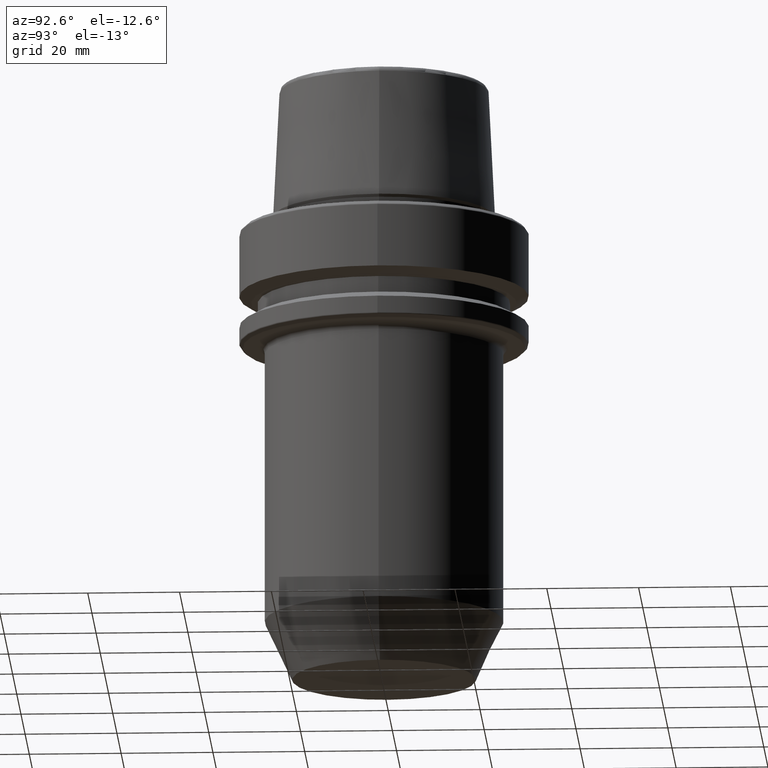
[diagram: clean part render]
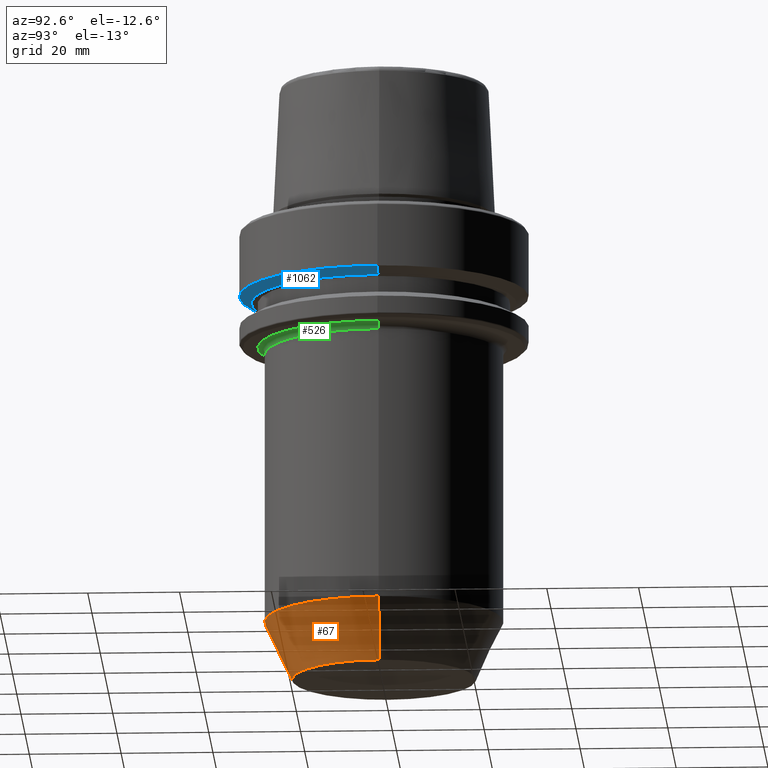
[diagram: same view with three faces highlighted in distinct colors, each labeled with its STEP entity id]
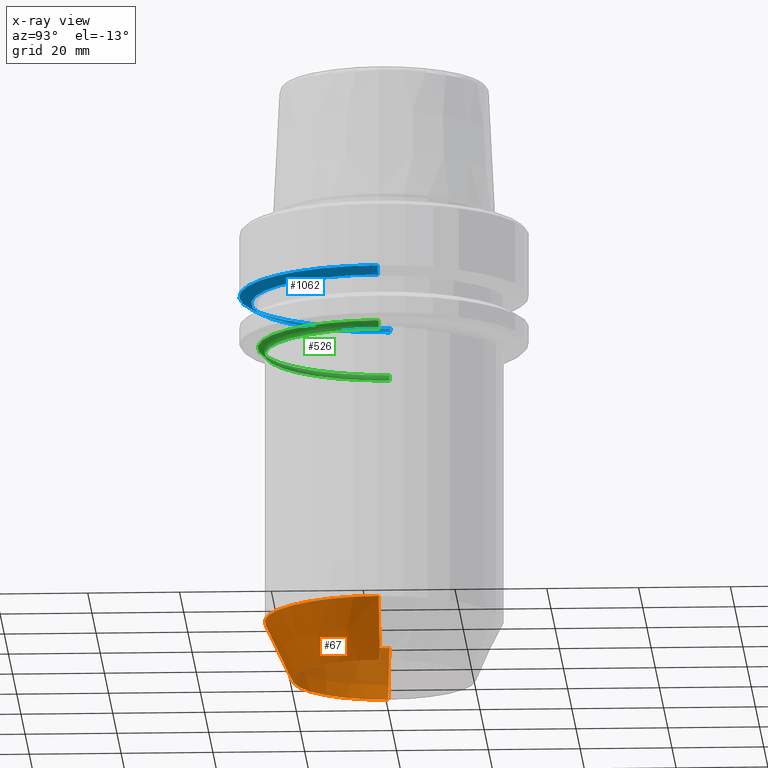
[diagram: x-ray of the same camera — body ghosted, the three highlighted faces saturated]
A machine part, auxiliary view with three faces highlighted in distinct colors.
The next image is the same camera in x-ray (body ghosted, the three faces saturated) — at least one of them is partly hidden behind the body in this view.
Their STEP definitions:

[orange] entity #67 — the highlighted conical surface has half-angle 25 deg.
#2 = LINE ( 'NONE', #1174, #972 ) ;
#67 = ADVANCED_FACE ( 'NONE', ( #799 ), #250, .T. ) ;
#71 = ORIENTED_EDGE ( 'NONE', *, *, #198, .T. ) ;
#105 = LINE ( 'NONE', #484, #663 ) ;
#170 = DIRECTION ( 'NONE',  ( -0.4226182617406969400, 5.175581015019628600E-017, 0.9063077870366511600 ) ) ;
#198 = EDGE_CURVE ( 'NONE', #1071, #1026, #2, .T. ) ;
#199 = DIRECTION ( 'NONE',  ( 1.000000000000000000, 0.0000000000000000000, 0.0000000000000000000 ) ) ;
#227 = CARTESIAN_POINT ( 'NONE',  ( -20.00000000000000000, 2.816687638038912400E-015, -100.0000000000000000 ) ) ;
#248 = DIRECTION ( 'NONE',  ( 1.000000000000000000, 0.0000000000000000000, 0.0000000000000000000 ) ) ;
#250 = CONICAL_SURFACE ( 'NONE', #335, 20.00000000000000000, 0.4363323129985795500 ) ;
#253 = AXIS2_PLACEMENT_3D ( 'NONE', #1231, #476, #1065 ) ;
#265 = EDGE_CURVE ( 'NONE', #1111, #1071, #883, .T. ) ;
#284 = CARTESIAN_POINT ( 'NONE',  ( -26.00000000000000000, 3.184081677783118200E-015, -87.13295847694256200 ) ) ;
#298 = EDGE_LOOP ( 'NONE', ( #651, #447, #71, #846 ) ) ;
#335 = AXIS2_PLACEMENT_3D ( 'NONE', #919, #1186, #248 ) ;
#347 = VERTEX_POINT ( 'NONE', #284 ) ;
#382 = DIRECTION ( 'NONE',  ( -0.0000000000000000000, -0.0000000000000000000, 1.000000000000000000 ) ) ;
#447 = ORIENTED_EDGE ( 'NONE', *, *, #265, .T. ) ;
#476 = DIRECTION ( 'NONE',  ( -0.0000000000000000000, -0.0000000000000000000, 1.000000000000000000 ) ) ;
#484 = CARTESIAN_POINT ( 'NONE',  ( -20.00000000000000000, 2.449293598294706500E-015, -100.0000000000000000 ) ) ;
#539 = CIRCLE ( 'NONE', #655, 26.00000000000000000 ) ;
#573 = DIRECTION ( 'NONE',  ( 0.4226182617406969400, 0.0000000000000000000, 0.9063077870366511600 ) ) ;
#651 = ORIENTED_EDGE ( 'NONE', *, *, #761, .F. ) ;
#655 = AXIS2_PLACEMENT_3D ( 'NONE', #1227, #382, #199 ) ;
#663 = VECTOR ( 'NONE', #170, 1000.000000000000000 ) ;
#711 = CARTESIAN_POINT ( 'NONE',  ( 20.00000000000000000, 0.0000000000000000000, -100.0000000000000000 ) ) ;
#761 = EDGE_CURVE ( 'NONE', #1111, #347, #105, .T. ) ;
#799 = FACE_OUTER_BOUND ( 'NONE', #298, .T. ) ;
#846 = ORIENTED_EDGE ( 'NONE', *, *, #870, .F. ) ;
#870 = EDGE_CURVE ( 'NONE', #347, #1026, #539, .T. ) ;
#883 = CIRCLE ( 'NONE', #253, 20.00000000000000000 ) ;
#919 = CARTESIAN_POINT ( 'NONE',  ( 0.0000000000000000000, 0.0000000000000000000, -100.0000000000000000 ) ) ;
#972 = VECTOR ( 'NONE', #573, 1000.000000000000000 ) ;
#1026 = VERTEX_POINT ( 'NONE', #1100 ) ;
#1065 = DIRECTION ( 'NONE',  ( 1.000000000000000000, 0.0000000000000000000, 0.0000000000000000000 ) ) ;
#1071 = VERTEX_POINT ( 'NONE', #711 ) ;
#1100 = CARTESIAN_POINT ( 'NONE',  ( 26.00000000000000000, 0.0000000000000000000, -87.13295847694256200 ) ) ;
#1111 = VERTEX_POINT ( 'NONE', #227 ) ;
#1174 = CARTESIAN_POINT ( 'NONE',  ( 20.00000000000000000, 0.0000000000000000000, -100.0000000000000000 ) ) ;
#1186 = DIRECTION ( 'NONE',  ( -0.0000000000000000000, -0.0000000000000000000, 1.000000000000000000 ) ) ;
#1227 = CARTESIAN_POINT ( 'NONE',  ( 0.0000000000000000000, 0.0000000000000000000, -87.13295847694256200 ) ) ;
#1231 = CARTESIAN_POINT ( 'NONE',  ( 0.0000000000000000000, 0.0000000000000000000, -100.0000000000000000 ) ) ;

[blue] entity #1062 — the highlighted conical surface has half-angle 60 deg.
#55 = FACE_OUTER_BOUND ( 'NONE', #1052, .T. ) ;
#66 = CIRCLE ( 'NONE', #749, 31.50000000000000000 ) ;
#148 = CARTESIAN_POINT ( 'NONE',  ( -28.94089653438085100, 3.700937523921292900E-015, -16.10000000000001600 ) ) ;
#158 = LINE ( 'NONE', #718, #1119 ) ;
#175 = CARTESIAN_POINT ( 'NONE',  ( 31.50000000000000000, 0.0000000000000000000, -14.62250092524070100 ) ) ;
#243 = CARTESIAN_POINT ( 'NONE',  ( 0.0000000000000000000, 0.0000000000000000000, -16.10000000000001600 ) ) ;
#291 = EDGE_CURVE ( 'NONE', #546, #332, #483, .T. ) ;
#332 = VERTEX_POINT ( 'NONE', #535 ) ;
#390 = AXIS2_PLACEMENT_3D ( 'NONE', #869, #617, #417 ) ;
#399 = DIRECTION ( 'NONE',  ( -0.8660254037844389300, 1.060575238724907300E-016, 0.4999999999999995000 ) ) ;
#417 = DIRECTION ( 'NONE',  ( 1.000000000000000000, 0.0000000000000000000, 0.0000000000000000000 ) ) ;
#483 = LINE ( 'NONE', #779, #1002 ) ;
#487 = CARTESIAN_POINT ( 'NONE',  ( 28.94089653438085100, 0.0000000000000000000, -16.10000000000001600 ) ) ;
#535 = CARTESIAN_POINT ( 'NONE',  ( -31.50000000000000000, 3.857637417314162700E-015, -14.62250092524070100 ) ) ;
#545 = ORIENTED_EDGE ( 'NONE', *, *, #291, .F. ) ;
#546 = VERTEX_POINT ( 'NONE', #148 ) ;
#581 = DIRECTION ( 'NONE',  ( 0.8660254037844389300, 0.0000000000000000000, 0.4999999999999995000 ) ) ;
#617 = DIRECTION ( 'NONE',  ( -0.0000000000000000000, -0.0000000000000000000, 1.000000000000000000 ) ) ;
#625 = AXIS2_PLACEMENT_3D ( 'NONE', #243, #922, #632 ) ;
#632 = DIRECTION ( 'NONE',  ( 1.000000000000000000, 0.0000000000000000000, 0.0000000000000000000 ) ) ;
#645 = EDGE_CURVE ( 'NONE', #546, #828, #967, .T. ) ;
#718 = CARTESIAN_POINT ( 'NONE',  ( 28.94089653438085100, 0.0000000000000000000, -16.10000000000001600 ) ) ;
#742 = DIRECTION ( 'NONE',  ( 1.000000000000000000, 0.0000000000000000000, 0.0000000000000000000 ) ) ;
#749 = AXIS2_PLACEMENT_3D ( 'NONE', #827, #1184, #742 ) ;
#775 = EDGE_CURVE ( 'NONE', #828, #791, #158, .T. ) ;
#779 = CARTESIAN_POINT ( 'NONE',  ( -28.94089653438085100, 3.544237630528423800E-015, -16.10000000000001600 ) ) ;
#791 = VERTEX_POINT ( 'NONE', #175 ) ;
#827 = CARTESIAN_POINT ( 'NONE',  ( 0.0000000000000000000, 0.0000000000000000000, -14.62250092524070100 ) ) ;
#828 = VERTEX_POINT ( 'NONE', #487 ) ;
#869 = CARTESIAN_POINT ( 'NONE',  ( 0.0000000000000000000, 0.0000000000000000000, -16.10000000000001600 ) ) ;
#916 = ORIENTED_EDGE ( 'NONE', *, *, #775, .T. ) ;
#922 = DIRECTION ( 'NONE',  ( -0.0000000000000000000, -0.0000000000000000000, 1.000000000000000000 ) ) ;
#933 = EDGE_CURVE ( 'NONE', #332, #791, #66, .T. ) ;
#967 = CIRCLE ( 'NONE', #625, 28.94089653438085100 ) ;
#1002 = VECTOR ( 'NONE', #399, 1000.000000000000000 ) ;
#1029 = CONICAL_SURFACE ( 'NONE', #390, 28.94089653438085100, 1.047197551196598300 ) ;
#1052 = EDGE_LOOP ( 'NONE', ( #545, #1081, #916, #1129 ) ) ;
#1062 = ADVANCED_FACE ( 'NONE', ( #55 ), #1029, .T. ) ;
#1081 = ORIENTED_EDGE ( 'NONE', *, *, #645, .T. ) ;
#1119 = VECTOR ( 'NONE', #581, 1000.000000000000000 ) ;
#1129 = ORIENTED_EDGE ( 'NONE', *, *, #933, .F. ) ;
#1184 = DIRECTION ( 'NONE',  ( -0.0000000000000000000, -0.0000000000000000000, 1.000000000000000000 ) ) ;

[green] entity #526 — the highlighted toroidal blend (fillet) surface has major radius 27.5 mm and minor (blend) radius 1.5 mm.
#80 = CARTESIAN_POINT ( 'NONE',  ( 0.0000000000000000000, 0.0000000000000000000, -27.50000000000001100 ) ) ;
#136 = VERTEX_POINT ( 'NONE', #367 ) ;
#149 = CARTESIAN_POINT ( 'NONE',  ( 27.50000000000000000, 0.0000000000000000000, -26.00000000000001100 ) ) ;
#159 = DIRECTION ( 'NONE',  ( -1.000000000000000000, 1.224646799147352000E-016, 0.0000000000000000000 ) ) ;
#162 = DIRECTION ( 'NONE',  ( 1.000000000000000000, 0.0000000000000000000, 0.0000000000000000000 ) ) ;
#224 = EDGE_CURVE ( 'NONE', #136, #345, #1004, .T. ) ;
#226 = ORIENTED_EDGE ( 'NONE', *, *, #224, .T. ) ;
#234 = ORIENTED_EDGE ( 'NONE', *, *, #706, .F. ) ;
#246 = AXIS2_PLACEMENT_3D ( 'NONE', #796, #351, #159 ) ;
#255 = DIRECTION ( 'NONE',  ( 0.0000000000000000000, 0.0000000000000000000, -1.000000000000000000 ) ) ;
#259 = ORIENTED_EDGE ( 'NONE', *, *, #770, .F. ) ;
#263 = DIRECTION ( 'NONE',  ( 1.000000000000000000, 0.0000000000000000000, 0.0000000000000000000 ) ) ;
#294 = TOROIDAL_SURFACE ( 'NONE', #726, 27.50000000000000000, 1.500000000000000000 ) ;
#340 = DIRECTION ( 'NONE',  ( -0.0000000000000000000, -0.0000000000000000000, 1.000000000000000000 ) ) ;
#345 = VERTEX_POINT ( 'NONE', #661 ) ;
#351 = DIRECTION ( 'NONE',  ( 1.224646799147353200E-016, 1.000000000000000000, 0.0000000000000000000 ) ) ;
#367 = CARTESIAN_POINT ( 'NONE',  ( -27.50000000000000000, 3.367778697655221300E-015, -26.00000000000001100 ) ) ;
#441 = FACE_OUTER_BOUND ( 'NONE', #1040, .T. ) ;
#526 = ADVANCED_FACE ( 'NONE', ( #441 ), #294, .F. ) ;
#538 = DIRECTION ( 'NONE',  ( 0.0000000000000000000, -1.000000000000000000, 0.0000000000000000000 ) ) ;
#661 = CARTESIAN_POINT ( 'NONE',  ( -26.00000000000000000, 3.184081677783118200E-015, -27.50000000000001100 ) ) ;
#693 = CIRCLE ( 'NONE', #880, 26.00000000000000000 ) ;
#706 = EDGE_CURVE ( 'NONE', #136, #1008, #1256, .T. ) ;
#726 = AXIS2_PLACEMENT_3D ( 'NONE', #947, #1135, #263 ) ;
#755 = CARTESIAN_POINT ( 'NONE',  ( 26.00000000000000000, 0.0000000000000000000, -27.50000000000001100 ) ) ;
#770 = EDGE_CURVE ( 'NONE', #1008, #1021, #1028, .T. ) ;
#796 = CARTESIAN_POINT ( 'NONE',  ( -27.50000000000000000, 3.367778697655221300E-015, -27.50000000000001100 ) ) ;
#863 = DIRECTION ( 'NONE',  ( 0.0000000000000000000, 0.0000000000000000000, -1.000000000000000000 ) ) ;
#880 = AXIS2_PLACEMENT_3D ( 'NONE', #80, #863, #1239 ) ;
#900 = AXIS2_PLACEMENT_3D ( 'NONE', #903, #538, #255 ) ;
#903 = CARTESIAN_POINT ( 'NONE',  ( 27.50000000000000000, 0.0000000000000000000, -27.50000000000001100 ) ) ;
#930 = CARTESIAN_POINT ( 'NONE',  ( 0.0000000000000000000, 0.0000000000000000000, -26.00000000000001100 ) ) ;
#940 = EDGE_CURVE ( 'NONE', #1021, #345, #693, .T. ) ;
#947 = CARTESIAN_POINT ( 'NONE',  ( 0.0000000000000000000, 0.0000000000000000000, -27.50000000000001100 ) ) ;
#971 = ORIENTED_EDGE ( 'NONE', *, *, #940, .F. ) ;
#1004 = CIRCLE ( 'NONE', #246, 1.500000000000001300 ) ;
#1008 = VERTEX_POINT ( 'NONE', #149 ) ;
#1021 = VERTEX_POINT ( 'NONE', #755 ) ;
#1028 = CIRCLE ( 'NONE', #900, 1.500000000000001300 ) ;
#1040 = EDGE_LOOP ( 'NONE', ( #234, #226, #971, #259 ) ) ;
#1135 = DIRECTION ( 'NONE',  ( -0.0000000000000000000, -0.0000000000000000000, 1.000000000000000000 ) ) ;
#1146 = AXIS2_PLACEMENT_3D ( 'NONE', #930, #340, #162 ) ;
#1239 = DIRECTION ( 'NONE',  ( 1.000000000000000000, 0.0000000000000000000, 0.0000000000000000000 ) ) ;
#1256 = CIRCLE ( 'NONE', #1146, 27.50000000000000000 ) ;